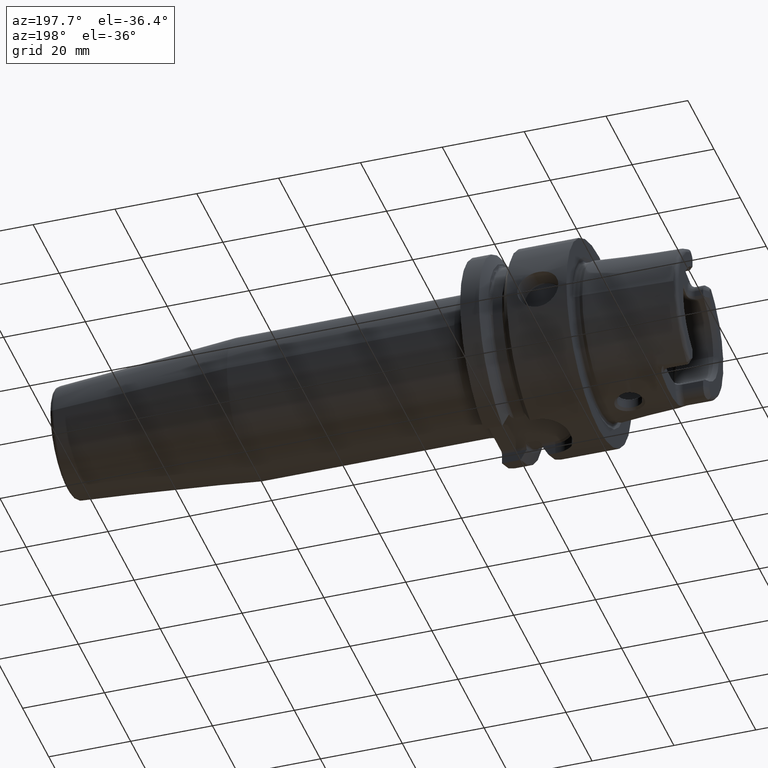
[diagram: clean part render]
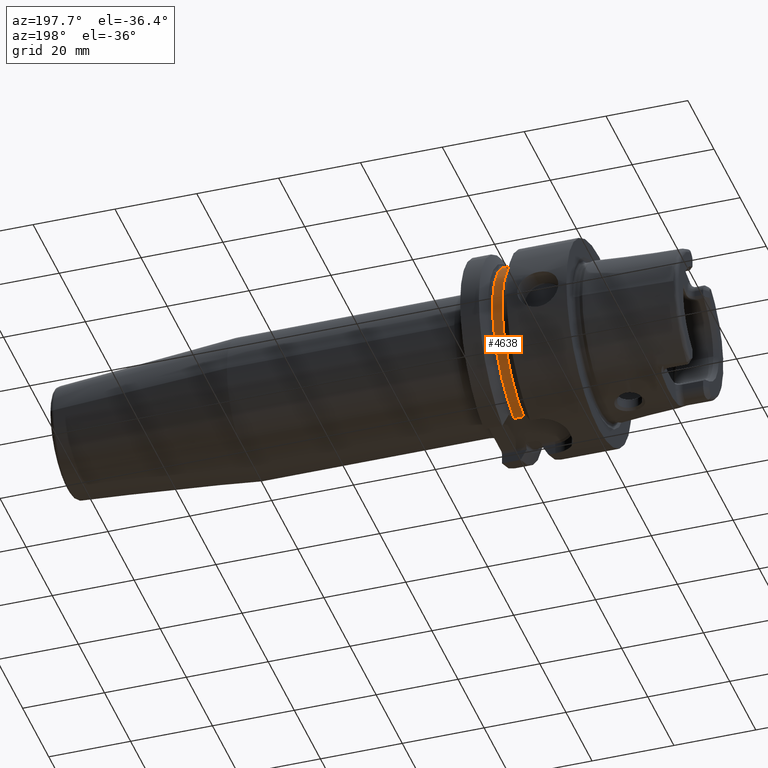
[diagram: same view with one face highlighted and labeled with its STEP entity id]
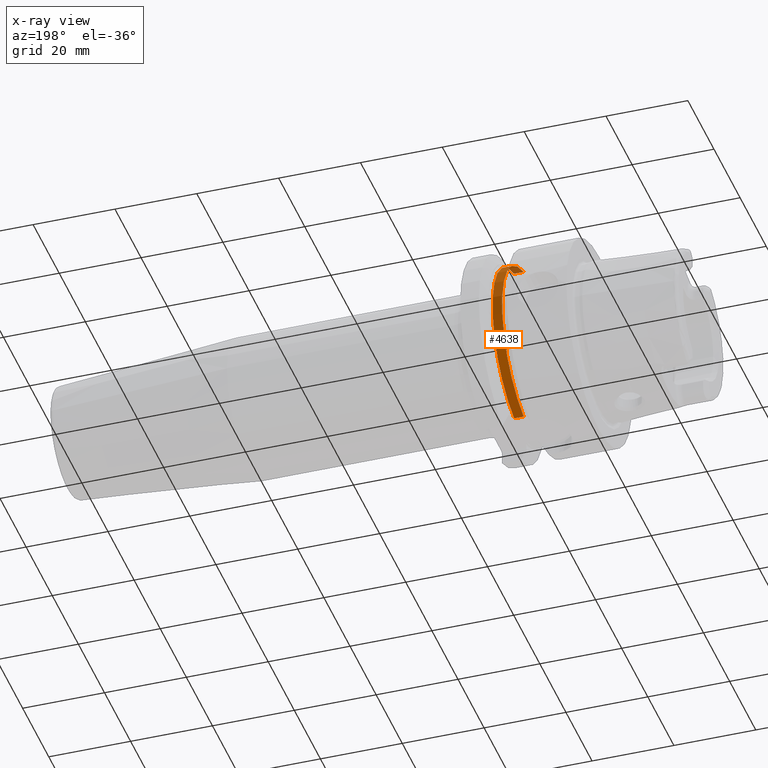
[diagram: x-ray of the same camera — body ghosted, the highlighted face saturated]
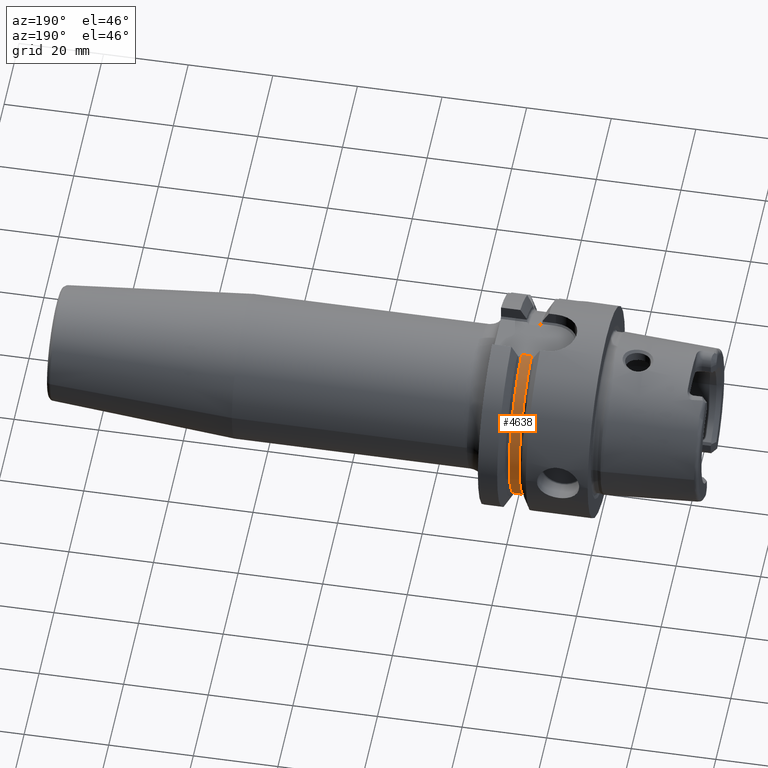
[diagram: same view with one face highlighted and labeled with its STEP entity id]
A machine part, auxiliary view. The second image highlights one B-rep face of the part: STEP entity #4638.
The next image is the same camera in x-ray: the body ghosted, the highlighted face saturated — about 4% of this face is hidden behind the body in this view.
A second angle (auxiliary view) of the same face is appended — the face is thin or edge-on in the first view.
In plain terms, the highlighted cylindrical surface (partial cylindrical patch) has radius 21.475 mm, axis along (1, 0, 0).
Its self-contained STEP definition (entity closure, byte-faithful):
#1234=CARTESIAN_POINT('',(1.68375E1,0.E0,0.E0));
#1235=DIRECTION('',(-1.E0,0.E0,0.E0));
#1236=DIRECTION('',(0.E0,2.298558733442E-1,9.732246798603E-1));
#1237=AXIS2_PLACEMENT_3D('',#1234,#1235,#1236);
#1239=DIRECTION('',(1.E0,0.E0,0.E0));
#1240=VECTOR('',#1239,2.325E0);
#1241=CARTESIAN_POINT('',(1.68375E1,4.936154880066E0,-2.09E1));
#1242=LINE('',#1241,#1240);
#1243=DIRECTION('',(-1.E0,0.E0,0.E0));
#1244=VECTOR('',#1243,2.325E0);
#1245=CARTESIAN_POINT('',(1.91625E1,4.936154880066E0,2.09E1));
#1246=LINE('',#1245,#1244);
#1732=CARTESIAN_POINT('',(1.91625E1,0.E0,0.E0));
#1733=DIRECTION('',(-1.E0,0.E0,0.E0));
#1734=DIRECTION('',(0.E0,2.298558733442E-1,9.732246798603E-1));
#1735=AXIS2_PLACEMENT_3D('',#1732,#1733,#1734);
#3020=CARTESIAN_POINT('',(1.68375E1,4.936154880066E0,2.09E1));
#3021=CARTESIAN_POINT('',(1.68375E1,4.936154880066E0,-2.09E1));
#3022=VERTEX_POINT('',#3020);
#3023=VERTEX_POINT('',#3021);
#3028=CARTESIAN_POINT('',(1.91625E1,4.936154880066E0,2.09E1));
#3029=CARTESIAN_POINT('',(1.91625E1,4.936154880066E0,-2.09E1));
#3030=VERTEX_POINT('',#3028);
#3031=VERTEX_POINT('',#3029);
#4624=CARTESIAN_POINT('',(1.415E1,0.E0,0.E0));
#4625=DIRECTION('',(1.E0,0.E0,0.E0));
#4626=DIRECTION('',(0.E0,-1.E0,0.E0));
#4627=AXIS2_PLACEMENT_3D('',#4624,#4625,#4626);
#4628=CYLINDRICAL_SURFACE('',#4627,2.1475E1);
#4629=ORIENTED_EDGE('',*,*,#4613,.T.);
#4631=ORIENTED_EDGE('',*,*,#4630,.T.);
#4633=ORIENTED_EDGE('',*,*,#4632,.F.);
#4635=ORIENTED_EDGE('',*,*,#4634,.T.);
#4636=EDGE_LOOP('',(#4629,#4631,#4633,#4635));
#4637=FACE_OUTER_BOUND('',#4636,.F.);
#4638=ADVANCED_FACE('',(#4637),#4628,.T.);
#1238=CIRCLE('',#1237,2.1475E1);
#1736=CIRCLE('',#1735,2.1475E1);
#4613=EDGE_CURVE('',#3022,#3023,#1238,.T.);
#4630=EDGE_CURVE('',#3023,#3031,#1242,.T.);
#4632=EDGE_CURVE('',#3030,#3031,#1736,.T.);
#4634=EDGE_CURVE('',#3030,#3022,#1246,.T.);